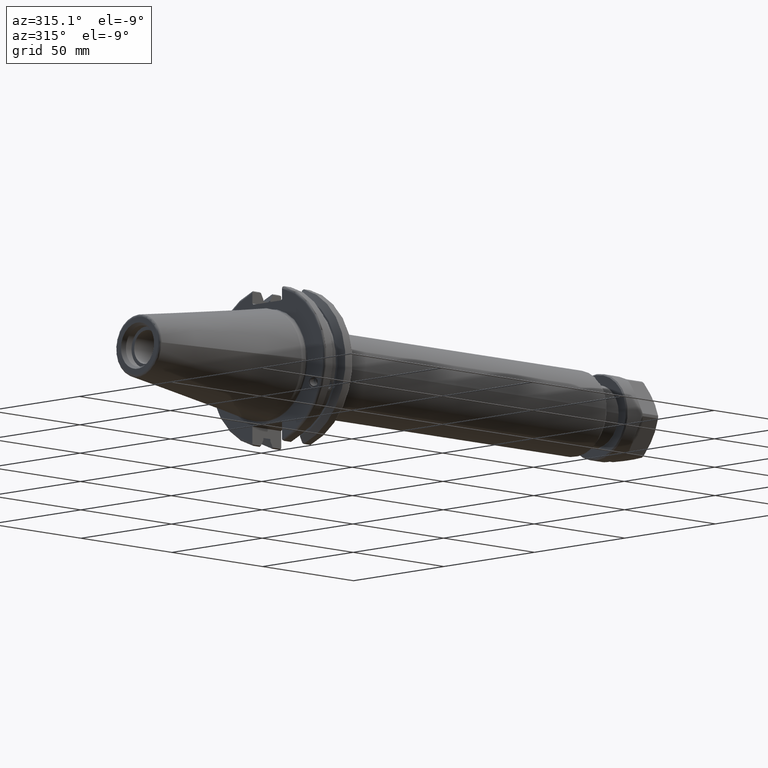
[diagram: clean part render]
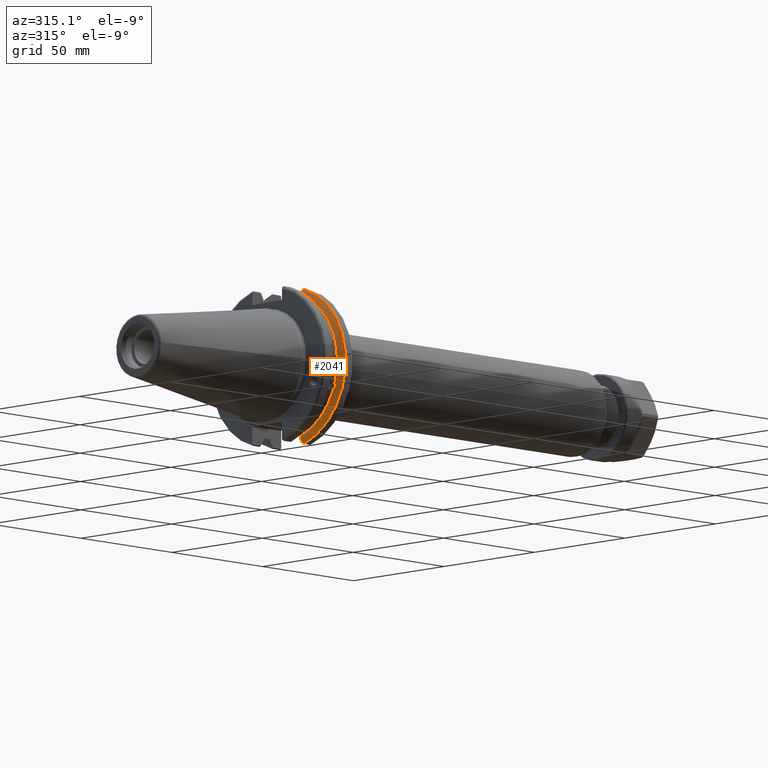
[diagram: same view with one face highlighted and labeled with its STEP entity id]
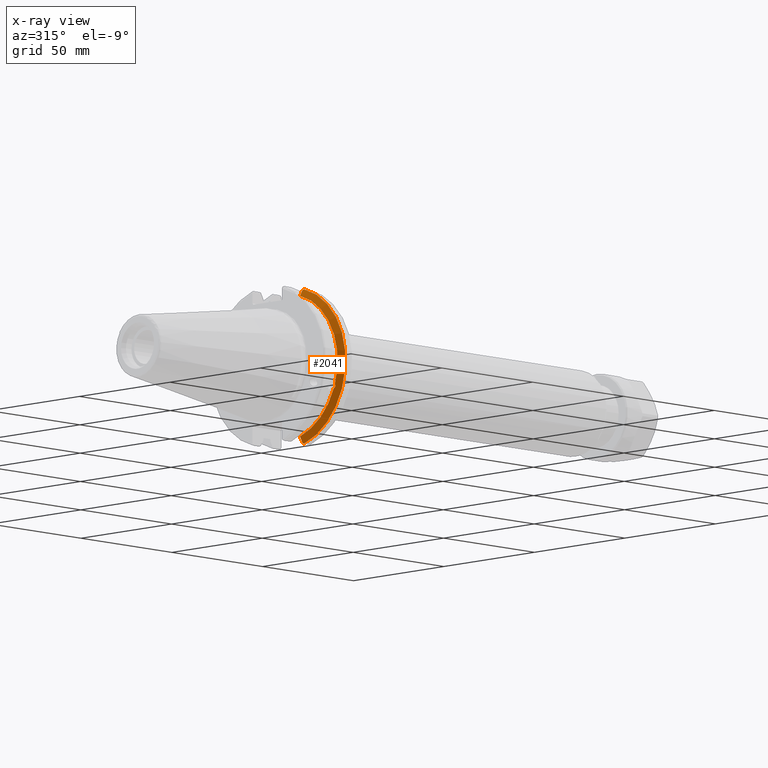
[diagram: x-ray of the same camera — body ghosted, the highlighted face saturated]
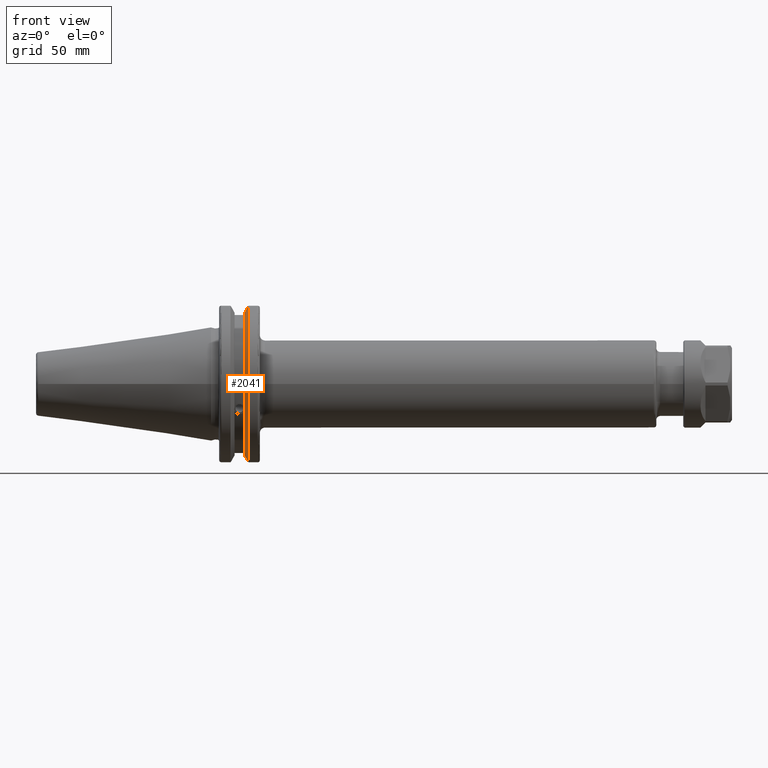
[diagram: same view with one face highlighted and labeled with its STEP entity id]
A machine part, auxiliary view. The second image highlights one B-rep face of the part: STEP entity #2041.
The next image is the same camera in x-ray: the body ghosted, the highlighted face saturated — about 0% of this face is hidden behind the body in this view.
A second angle (front view) of the same face is appended — the face is thin or edge-on in the first view.
In plain terms, the highlighted conical surface has half-angle 60 deg.
Its self-contained STEP definition (entity closure, byte-faithful):
#61=(
BOUNDED_CURVE()
B_SPLINE_CURVE(2,(#3394,#3395,#3396),.UNSPECIFIED.,.F.,.F.)
B_SPLINE_CURVE_WITH_KNOTS((3,3),(0.,0.276549142796025),.UNSPECIFIED.)
CURVE()
GEOMETRIC_REPRESENTATION_ITEM()
RATIONAL_B_SPLINE_CURVE((1.,1.00095203903598,1.00031614444907))
REPRESENTATION_ITEM('')
);
#62=(
BOUNDED_CURVE()
B_SPLINE_CURVE(2,(#3398,#3399,#3400),.UNSPECIFIED.,.F.,.F.)
B_SPLINE_CURVE_WITH_KNOTS((3,3),(0.,0.0639048713675602),.UNSPECIFIED.)
CURVE()
GEOMETRIC_REPRESENTATION_ITEM()
RATIONAL_B_SPLINE_CURVE((1.,1.00028444218291,1.00047644010587))
REPRESENTATION_ITEM('')
);
#63=(
BOUNDED_CURVE()
B_SPLINE_CURVE(2,(#3404,#3405,#3406),.UNSPECIFIED.,.F.,.F.)
B_SPLINE_CURVE_WITH_KNOTS((3,3),(0.329353533631195,0.393258405001024),
 .UNSPECIFIED.)
CURVE()
GEOMETRIC_REPRESENTATION_ITEM()
RATIONAL_B_SPLINE_CURVE((1.0004764401059,1.00028444218293,1.))
REPRESENTATION_ITEM('')
);
#64=(
BOUNDED_CURVE()
B_SPLINE_CURVE(2,(#3408,#3409,#3410),.UNSPECIFIED.,.F.,.F.)
B_SPLINE_CURVE_WITH_KNOTS((3,3),(0.0550586467390504,0.33160778953585),
 .UNSPECIFIED.)
CURVE()
GEOMETRIC_REPRESENTATION_ITEM()
RATIONAL_B_SPLINE_CURVE((1.00031614445126,1.00095203904259,1.))
REPRESENTATION_ITEM('')
);
#124=B_SPLINE_CURVE_WITH_KNOTS('',3,(#3301,#3302,#3303,#3304,#3305,#3306,
#3307,#3308),.UNSPECIFIED.,.F.,.F.,(4,2,2,4),(0.451995700189024,0.464547828547661,
0.504528771685166,0.544509714822671),.UNSPECIFIED.);
#128=B_SPLINE_CURVE_WITH_KNOTS('',3,(#3363,#3364,#3365,#3366,#3367,#3368,
#3369,#3370),.UNSPECIFIED.,.F.,.F.,(4,2,2,4),(0.544509714822671,0.584490657960176,
0.624471601097681,0.637023729456319),.UNSPECIFIED.);
#290=FACE_OUTER_BOUND('',#417,.T.);
#417=EDGE_LOOP('',(#1525,#1526,#1527,#1528,#1529,#1530,#1531,#1532,#1533));
#803=CIRCLE('',#2279,28.9593772964944);
#804=CIRCLE('',#2280,31.75);
#805=CIRCLE('',#2281,28.9593772964944);
#923=VERTEX_POINT('',#3298);
#924=VERTEX_POINT('',#3300);
#931=VERTEX_POINT('',#3361);
#937=VERTEX_POINT('',#3391);
#938=VERTEX_POINT('',#3393);
#939=VERTEX_POINT('',#3397);
#940=VERTEX_POINT('',#3401);
#941=VERTEX_POINT('',#3403);
#942=VERTEX_POINT('',#3407);
#1144=EDGE_CURVE('',#924,#923,#124,.T.);
#1152=EDGE_CURVE('',#923,#931,#128,.T.);
#1161=EDGE_CURVE('',#931,#937,#803,.T.);
#1162=EDGE_CURVE('',#937,#938,#61,.T.);
#1163=EDGE_CURVE('',#939,#938,#62,.T.);
#1164=EDGE_CURVE('',#940,#939,#804,.T.);
#1165=EDGE_CURVE('',#941,#940,#63,.T.);
#1166=EDGE_CURVE('',#941,#942,#64,.T.);
#1167=EDGE_CURVE('',#942,#924,#805,.T.);
#1525=ORIENTED_EDGE('',*,*,#1144,.T.);
#1526=ORIENTED_EDGE('',*,*,#1152,.T.);
#1527=ORIENTED_EDGE('',*,*,#1161,.T.);
#1528=ORIENTED_EDGE('',*,*,#1162,.T.);
#1529=ORIENTED_EDGE('',*,*,#1163,.F.);
#1530=ORIENTED_EDGE('',*,*,#1164,.F.);
#1531=ORIENTED_EDGE('',*,*,#1165,.F.);
#1532=ORIENTED_EDGE('',*,*,#1166,.T.);
#1533=ORIENTED_EDGE('',*,*,#1167,.T.);
#2003=CONICAL_SURFACE('',#2278,30.3546886482472,1.0471975511966);
#2041=ADVANCED_FACE('',(#290),#2003,.T.);
#2278=AXIS2_PLACEMENT_3D('',#3390,#2635,#2636);
#2279=AXIS2_PLACEMENT_3D('',#3392,#2637,#2638);
#2280=AXIS2_PLACEMENT_3D('',#3402,#2639,#2640);
#2281=AXIS2_PLACEMENT_3D('',#3411,#2641,#2642);
#2635=DIRECTION('center_axis',(1.,0.,0.));
#2636=DIRECTION('ref_axis',(0.,-1.,-1.22464679914735E-16));
#2637=DIRECTION('center_axis',(1.,0.,0.));
#2638=DIRECTION('ref_axis',(0.,0.,-1.));
#2639=DIRECTION('center_axis',(1.,0.,0.));
#2640=DIRECTION('ref_axis',(0.,0.,-1.));
#2641=DIRECTION('center_axis',(1.,0.,0.));
#2642=DIRECTION('ref_axis',(0.,0.,-1.));
#3298=CARTESIAN_POINT('',(13.227,-27.51401829017,-10.0142836826777));
#3300=CARTESIAN_POINT('',(13.042,-27.4956274489925,-9.09043478536246));
#3301=CARTESIAN_POINT('Ctrl Pts',(13.042,-27.4956274489925,-9.09043478536246));
#3302=CARTESIAN_POINT('Ctrl Pts',(13.0561204071996,-27.5087667900418,-9.12860597076218));
#3303=CARTESIAN_POINT('Ctrl Pts',(13.0695929817857,-27.5206055003512,-9.16696618806878));
#3304=CARTESIAN_POINT('Ctrl Pts',(13.122981441159,-27.5642934663232,-9.32791534028656));
#3305=CARTESIAN_POINT('Ctrl Pts',(13.1611197084175,-27.5867382255984,-9.46717946402648));
#3306=CARTESIAN_POINT('Ctrl Pts',(13.2133106446058,-27.5847569104122,-9.74771639360671));
#3307=CARTESIAN_POINT('Ctrl Pts',(13.227,-27.559599249844,-9.8890510252165));
#3308=CARTESIAN_POINT('Ctrl Pts',(13.227,-27.51401829017,-10.0142836826777));
#3361=CARTESIAN_POINT('',(13.042,-26.9060914640648,-10.7101715919071));
#3363=CARTESIAN_POINT('Ctrl Pts',(13.227,-27.51401829017,-10.0142836826777));
#3364=CARTESIAN_POINT('Ctrl Pts',(13.227,-27.4684373304961,-10.139516340139));
#3365=CARTESIAN_POINT('Ctrl Pts',(13.2133106446058,-27.3968610665578,-10.2639559818059));
#3366=CARTESIAN_POINT('Ctrl Pts',(13.1611197084175,-27.2180531796526,-10.4801333026531));
#3367=CARTESIAN_POINT('Ctrl Pts',(13.122981441159,-27.1113422433189,-10.5723885976054));
#3368=CARTESIAN_POINT('Ctrl Pts',(13.0695929817857,-26.9744191989197,-10.6676007180673));
#3369=CARTESIAN_POINT('Ctrl Pts',(13.0561204071996,-26.9406927482839,-10.6893765730703));
#3370=CARTESIAN_POINT('Ctrl Pts',(13.042,-26.9060914640648,-10.7101715919071));
#3390=CARTESIAN_POINT('Origin',(13.8475833845378,0.,0.));
#3391=CARTESIAN_POINT('',(13.042,-8.19,-27.7771386827498));
#3392=CARTESIAN_POINT('Origin',(13.042,0.,0.));
#3393=CARTESIAN_POINT('',(14.3744146964874,-8.19,-30.1755016258903));
#3394=CARTESIAN_POINT('Ctrl Pts',(13.042,-8.19,-27.7771386827498));
#3395=CARTESIAN_POINT('Ctrl Pts',(13.6806364384794,-8.19,-28.9303689539765));
#3396=CARTESIAN_POINT('Ctrl Pts',(14.3744146964874,-8.19,-30.1755016258903));
#3397=CARTESIAN_POINT('',(14.6531667690756,-8.67204822802685,-30.5427254764662));
#3398=CARTESIAN_POINT('Ctrl Pts',(14.6531667690756,-8.67204822802685,-30.5427254764662));
#3399=CARTESIAN_POINT('Ctrl Pts',(14.5121085187837,-8.42917748262641,-30.3577067892629));
#3400=CARTESIAN_POINT('Ctrl Pts',(14.3744146964874,-8.19,-30.1755016258903));
#3401=CARTESIAN_POINT('',(14.6531667690756,-8.67204822802685,30.5427254764662));
#3402=CARTESIAN_POINT('Origin',(14.6531667690756,0.,0.));
#3403=CARTESIAN_POINT('',(14.3744146964874,-8.19,30.1755016258903));
#3404=CARTESIAN_POINT('Ctrl Pts',(14.3744146964874,-8.19,30.1755016258903));
#3405=CARTESIAN_POINT('Ctrl Pts',(14.5121085187884,-8.42917748263464,30.3577067892692));
#3406=CARTESIAN_POINT('Ctrl Pts',(14.6531667690756,-8.67204822802686,30.5427254764662));
#3407=CARTESIAN_POINT('',(13.042,-8.19,27.7771386827498));
#3408=CARTESIAN_POINT('Ctrl Pts',(14.3744146964874,-8.19,30.1755016258903));
#3409=CARTESIAN_POINT('Ctrl Pts',(13.6806364384741,-8.19,28.930368953967));
#3410=CARTESIAN_POINT('Ctrl Pts',(13.042,-8.19,27.7771386827498));
#3411=CARTESIAN_POINT('Origin',(13.042,0.,0.));